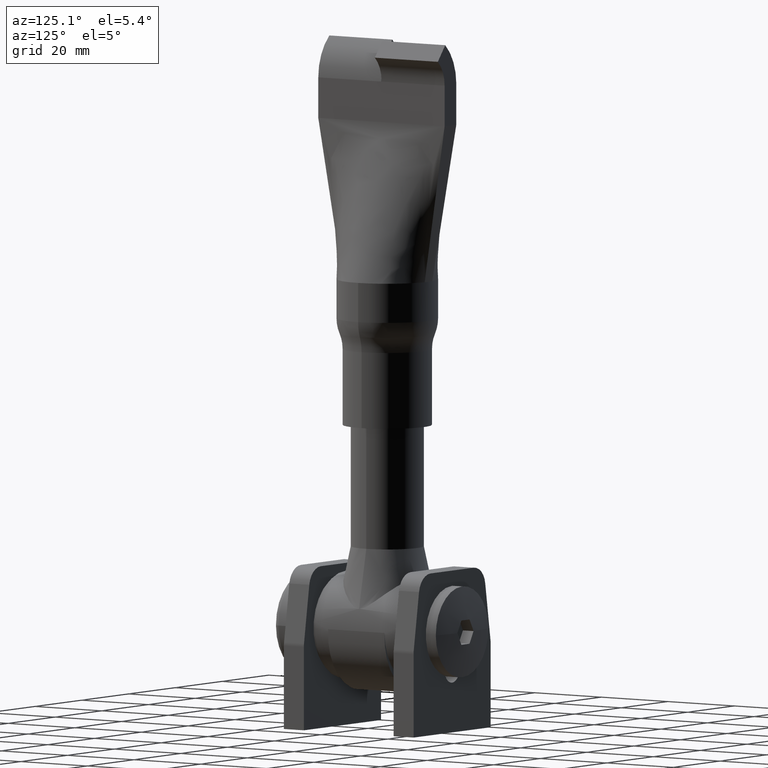
[diagram: clean part render]
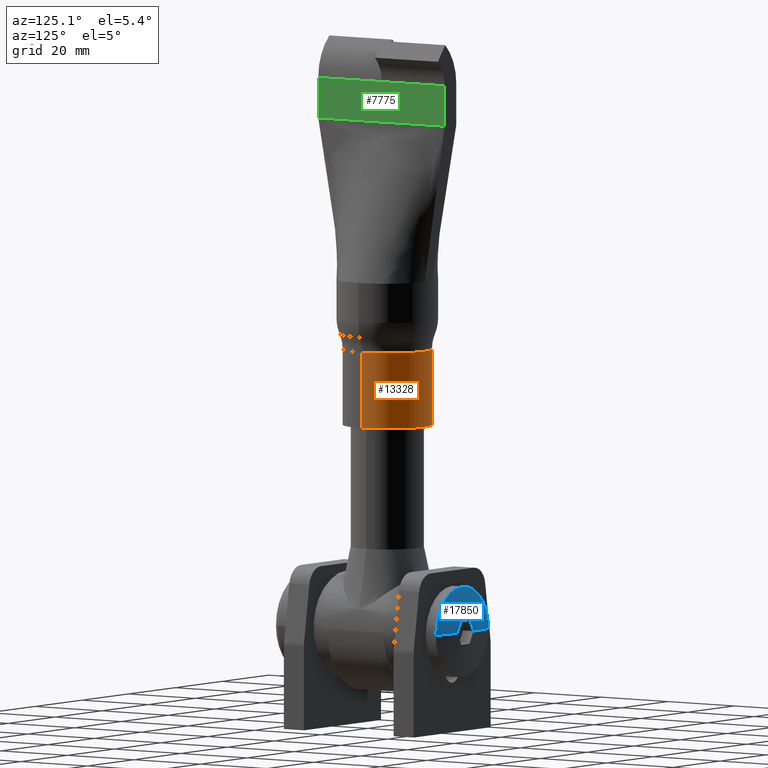
[diagram: same view with three faces highlighted in distinct colors, each labeled with its STEP entity id]
A machine part, auxiliary view with three faces highlighted in distinct colors.
Their STEP definitions:

[orange] entity #13328 — the highlighted cylindrical surface (partial cylindrical patch) has radius 11 mm, axis along (-0, -0, -1).
#17 = ORIENTED_EDGE ( 'NONE', *, *, #2529, .T. ) ;
#200 = VERTEX_POINT ( 'NONE', #11730 ) ;
#351 = DIRECTION ( 'NONE',  ( -0.0000000000000000000, -0.0000000000000000000, -1.000000000000000000 ) ) ;
#1136 = VERTEX_POINT ( 'NONE', #13223 ) ;
#1314 = CARTESIAN_POINT ( 'NONE',  ( 11.00000000000000000, 1.347111479062088400E-015, 0.0000000000000000000 ) ) ;
#1703 = LINE ( 'NONE', #14458, #2957 ) ;
#2354 = CARTESIAN_POINT ( 'NONE',  ( 11.00000000000000000, 1.347111479062088400E-015, 24.00000000000000000 ) ) ;
#2522 = ORIENTED_EDGE ( 'NONE', *, *, #11246, .T. ) ;
#2529 = EDGE_CURVE ( 'NONE', #200, #10312, #12843, .T. ) ;
#2957 = VECTOR ( 'NONE', #351, 1000.000000000000000 ) ;
#3357 = VERTEX_POINT ( 'NONE', #1314 ) ;
#4540 = DIRECTION ( 'NONE',  ( -0.0000000000000000000, -0.0000000000000000000, -1.000000000000000000 ) ) ;
#5885 = EDGE_CURVE ( 'NONE', #200, #1136, #1703, .T. ) ;
#6458 = EDGE_CURVE ( 'NONE', #3357, #1136, #16204, .T. ) ;
#7871 = DIRECTION ( 'NONE',  ( 0.0000000000000000000, 0.0000000000000000000, 1.000000000000000000 ) ) ;
#8002 = DIRECTION ( 'NONE',  ( 1.000000000000000000, 0.0000000000000000000, 0.0000000000000000000 ) ) ;
#9112 = ORIENTED_EDGE ( 'NONE', *, *, #6458, .T. ) ;
#9172 = AXIS2_PLACEMENT_3D ( 'NONE', #18915, #7871, #8002 ) ;
#9742 = AXIS2_PLACEMENT_3D ( 'NONE', #20342, #4540, #13821 ) ;
#10096 = ORIENTED_EDGE ( 'NONE', *, *, #5885, .F. ) ;
#10309 = DIRECTION ( 'NONE',  ( 1.000000000000000000, 0.0000000000000000000, 0.0000000000000000000 ) ) ;
#10312 = VERTEX_POINT ( 'NONE', #16318 ) ;
#10488 = DIRECTION ( 'NONE',  ( -0.0000000000000000000, -0.0000000000000000000, -1.000000000000000000 ) ) ;
#11246 = EDGE_CURVE ( 'NONE', #10312, #3357, #16284, .T. ) ;
#11440 = EDGE_LOOP ( 'NONE', ( #17, #2522, #9112, #10096 ) ) ;
#11730 = CARTESIAN_POINT ( 'NONE',  ( -11.00000000000000000, 0.0000000000000000000, 18.73217312357363400 ) ) ;
#11978 = VECTOR ( 'NONE', #10488, 1000.000000000000000 ) ;
#12843 = CIRCLE ( 'NONE', #13687, 11.00000000000000000 ) ;
#13223 = CARTESIAN_POINT ( 'NONE',  ( -11.00000000000000000, 0.0000000000000000000, 0.0000000000000000000 ) ) ;
#13328 = ADVANCED_FACE ( 'NONE', ( #16421 ), #17666, .T. ) ;
#13687 = AXIS2_PLACEMENT_3D ( 'NONE', #19854, #16699, #10309 ) ;
#13821 = DIRECTION ( 'NONE',  ( -1.000000000000000000, 0.0000000000000000000, 0.0000000000000000000 ) ) ;
#14458 = CARTESIAN_POINT ( 'NONE',  ( -11.00000000000000000, 0.0000000000000000000, 24.00000000000000000 ) ) ;
#16204 = CIRCLE ( 'NONE', #9172, 11.00000000000000000 ) ;
#16284 = LINE ( 'NONE', #2354, #11978 ) ;
#16318 = CARTESIAN_POINT ( 'NONE',  ( 11.00000000000000000, 1.347111479062088400E-015, 18.73217312357363400 ) ) ;
#16421 = FACE_OUTER_BOUND ( 'NONE', #11440, .T. ) ;
#16699 = DIRECTION ( 'NONE',  ( -0.0000000000000000000, -0.0000000000000000000, -1.000000000000000000 ) ) ;
#17666 = CYLINDRICAL_SURFACE ( 'NONE', #9742, 11.00000000000000000 ) ;
#18915 = CARTESIAN_POINT ( 'NONE',  ( 0.0000000000000000000, 0.0000000000000000000, 0.0000000000000000000 ) ) ;
#19854 = CARTESIAN_POINT ( 'NONE',  ( 0.0000000000000000000, 0.0000000000000000000, 18.73217312357363400 ) ) ;
#20342 = CARTESIAN_POINT ( 'NONE',  ( 0.0000000000000000000, 0.0000000000000000000, 24.00000000000000000 ) ) ;

[blue] entity #17850 — the highlighted spherical surface has radius 58.0784 mm.
#243 = SPHERICAL_SURFACE ( 'NONE', #10569, 58.07840909090924700 ) ;
#307 = CARTESIAN_POINT ( 'NONE',  ( 11.24999999999997500, 17.90000000000000600, 0.0000000000000000000 ) ) ;
#1022 = CIRCLE ( 'NONE', #8369, 58.00087587727455900 ) ;
#1116 = AXIS2_PLACEMENT_3D ( 'NONE', #7378, #15938, #7953 ) ;
#1287 = CARTESIAN_POINT ( 'NONE',  ( 3.464101615137756200, 18.89659933971550000, 6.505213034913026600E-016 ) ) ;
#1417 = CIRCLE ( 'NONE', #1116, 58.07840909090924700 ) ;
#1428 = DIRECTION ( 'NONE',  ( 0.5000000000000003300, 3.469394559473421300E-014, 0.8660254037844386000 ) ) ;
#1533 = CIRCLE ( 'NONE', #12127, 58.00087587727456700 ) ;
#2262 = VERTEX_POINT ( 'NONE', #19464 ) ;
#2826 = VERTEX_POINT ( 'NONE', #1287 ) ;
#3139 = ORIENTED_EDGE ( 'NONE', *, *, #8683, .F. ) ;
#3556 = CARTESIAN_POINT ( 'NONE',  ( 0.0000000000000000000, 17.90000000000000600, 0.0000000000000000000 ) ) ;
#3591 = DIRECTION ( 'NONE',  ( -1.000000000000000000, 0.0000000000000000000, 0.0000000000000000000 ) ) ;
#3880 = EDGE_CURVE ( 'NONE', #20545, #16864, #16639, .T. ) ;
#5158 = DIRECTION ( 'NONE',  ( -0.0000000000000000000, -1.000000000000000000, -0.0000000000000000000 ) ) ;
#5233 = DIRECTION ( 'NONE',  ( 0.0000000000000000000, 0.0000000000000000000, -1.000000000000000000 ) ) ;
#5429 = VERTEX_POINT ( 'NONE', #307 ) ;
#5505 = VERTEX_POINT ( 'NONE', #9066 ) ;
#5703 = CIRCLE ( 'NONE', #13376, 58.07840909090924700 ) ;
#6177 = DIRECTION ( 'NONE',  ( 0.0000000000000000000, -0.0000000000000000000, -1.000000000000000000 ) ) ;
#6719 = CARTESIAN_POINT ( 'NONE',  ( 0.0000000000000000000, -39.07840909090925400, 0.0000000000000000000 ) ) ;
#6812 = DIRECTION ( 'NONE',  ( 0.0000000000000000000, 0.0000000000000000000, -1.000000000000000000 ) ) ;
#7062 = DIRECTION ( 'NONE',  ( -0.8660254037844387100, -0.0000000000000000000, -0.4999999999999998300 ) ) ;
#7378 = CARTESIAN_POINT ( 'NONE',  ( 0.0000000000000000000, -39.07840909090925400, 0.0000000000000000000 ) ) ;
#7430 = CIRCLE ( 'NONE', #11126, 11.24999999999999500 ) ;
#7906 = EDGE_CURVE ( 'NONE', #5505, #2826, #1022, .T. ) ;
#7953 = DIRECTION ( 'NONE',  ( 1.000000000000000000, 0.0000000000000000000, -1.224646799147353200E-016 ) ) ;
#8369 = AXIS2_PLACEMENT_3D ( 'NONE', #15065, #7062, #15340 ) ;
#8523 = DIRECTION ( 'NONE',  ( 0.0000000000000000000, 0.0000000000000000000, -1.000000000000000000 ) ) ;
#8641 = CARTESIAN_POINT ( 'NONE',  ( -11.24999999999997500, 17.90000000000000600, 1.377727649040769200E-015 ) ) ;
#8683 = EDGE_CURVE ( 'NONE', #2262, #19550, #16007, .T. ) ;
#8716 = FACE_OUTER_BOUND ( 'NONE', #20037, .T. ) ;
#8954 = EDGE_CURVE ( 'NONE', #16864, #5505, #1533, .T. ) ;
#9066 = CARTESIAN_POINT ( 'NONE',  ( 1.732050807568879200, 18.89659933971550000, 3.000000000000000400 ) ) ;
#9246 = DIRECTION ( 'NONE',  ( 1.000000000000000000, 3.469394559473421900E-014, 0.0000000000000000000 ) ) ;
#10169 = CARTESIAN_POINT ( 'NONE',  ( 0.0000000000000000000, 17.90000000000000600, 0.0000000000000000000 ) ) ;
#10569 = AXIS2_PLACEMENT_3D ( 'NONE', #16272, #14505, #16067 ) ;
#10758 = ORIENTED_EDGE ( 'NONE', *, *, #8954, .F. ) ;
#10981 = CARTESIAN_POINT ( 'NONE',  ( -2.598076211353314700, -39.07840909090925400, 1.500000000000000000 ) ) ;
#11126 = AXIS2_PLACEMENT_3D ( 'NONE', #10169, #11772, #5233 ) ;
#11772 = DIRECTION ( 'NONE',  ( -0.0000000000000000000, -1.000000000000000000, -0.0000000000000000000 ) ) ;
#12127 = AXIS2_PLACEMENT_3D ( 'NONE', #15921, #6177, #9246 ) ;
#13376 = AXIS2_PLACEMENT_3D ( 'NONE', #6719, #8523, #3591 ) ;
#14199 = ORIENTED_EDGE ( 'NONE', *, *, #7906, .F. ) ;
#14505 = DIRECTION ( 'NONE',  ( 0.0000000000000000000, 0.0000000000000000000, 1.000000000000000000 ) ) ;
#15065 = CARTESIAN_POINT ( 'NONE',  ( 2.598076211353317800, -39.07840909090925400, 1.500000000000000400 ) ) ;
#15340 = DIRECTION ( 'NONE',  ( 0.4999999999999998900, 3.469394559473422500E-014, -0.8660254037844388200 ) ) ;
#15921 = CARTESIAN_POINT ( 'NONE',  ( 0.0000000000000000000, -39.07840909090925400, 3.000000000000000400 ) ) ;
#15938 = DIRECTION ( 'NONE',  ( 1.224646799147353200E-016, -0.0000000000000000000, 1.000000000000000000 ) ) ;
#16007 = CIRCLE ( 'NONE', #16587, 11.24999999999999500 ) ;
#16067 = DIRECTION ( 'NONE',  ( 1.000000000000000000, 0.0000000000000000000, 0.0000000000000000000 ) ) ;
#16272 = CARTESIAN_POINT ( 'NONE',  ( 0.0000000000000000000, -39.07840909090925400, 0.0000000000000000000 ) ) ;
#16587 = AXIS2_PLACEMENT_3D ( 'NONE', #3556, #5158, #6812 ) ;
#16639 = CIRCLE ( 'NONE', #19474, 58.00087587727457400 ) ;
#16864 = VERTEX_POINT ( 'NONE', #19491 ) ;
#17040 = ORIENTED_EDGE ( 'NONE', *, *, #20600, .T. ) ;
#17850 = ADVANCED_FACE ( 'NONE', ( #8716 ), #243, .T. ) ;
#18002 = ORIENTED_EDGE ( 'NONE', *, *, #18876, .F. ) ;
#18234 = ORIENTED_EDGE ( 'NONE', *, *, #19479, .F. ) ;
#18876 = EDGE_CURVE ( 'NONE', #2826, #5429, #5703, .T. ) ;
#19045 = DIRECTION ( 'NONE',  ( 0.8660254037844387100, -0.0000000000000000000, -0.5000000000000003300 ) ) ;
#19464 = CARTESIAN_POINT ( 'NONE',  ( 1.377727649040771600E-015, 17.90000000000000600, 11.24999999999999500 ) ) ;
#19474 = AXIS2_PLACEMENT_3D ( 'NONE', #10981, #19045, #1428 ) ;
#19479 = EDGE_CURVE ( 'NONE', #5429, #2262, #7430, .T. ) ;
#19491 = CARTESIAN_POINT ( 'NONE',  ( -1.732050807568875200, 18.89659933971550000, 3.000000000000000000 ) ) ;
#19550 = VERTEX_POINT ( 'NONE', #8641 ) ;
#20037 = EDGE_LOOP ( 'NONE', ( #20317, #17040, #3139, #18234, #18002, #14199, #10758 ) ) ;
#20317 = ORIENTED_EDGE ( 'NONE', *, *, #3880, .F. ) ;
#20545 = VERTEX_POINT ( 'NONE', #20678 ) ;
#20600 = EDGE_CURVE ( 'NONE', #20545, #19550, #1417, .T. ) ;
#20678 = CARTESIAN_POINT ( 'NONE',  ( -3.464101615137754800, 18.89659933971550000, 0.0000000000000000000 ) ) ;

[green] entity #7775 — the highlighted planar face has unit normal (-1, 0, 0).
#55 = DIRECTION ( 'NONE',  ( -1.000000000000000000, 1.141265444721584000E-016, 0.0000000000000000000 ) ) ;
#814 = ORIENTED_EDGE ( 'NONE', *, *, #19420, .T. ) ;
#1028 = VERTEX_POINT ( 'NONE', #20286 ) ;
#1142 = DIRECTION ( 'NONE',  ( -1.141265444721583800E-016, -1.000000000000000000, 0.0000000000000000000 ) ) ;
#1207 = CARTESIAN_POINT ( 'NONE',  ( 2.500000000000000900, 19.00000000000000000, 84.99999999999998600 ) ) ;
#1402 = DIRECTION ( 'NONE',  ( 1.144276699193144600E-016, 1.000000000000000000, -0.0000000000000000000 ) ) ;
#1516 = VECTOR ( 'NONE', #1142, 1000.000000000000000 ) ;
#1781 = EDGE_CURVE ( 'NONE', #19858, #1028, #11676, .T. ) ;
#1968 = AXIS2_PLACEMENT_3D ( 'NONE', #15988, #55, #16261 ) ;
#3366 = VERTEX_POINT ( 'NONE', #15936 ) ;
#4238 = VECTOR ( 'NONE', #12636, 1000.000000000000000 ) ;
#4240 = EDGE_CURVE ( 'NONE', #1028, #6791, #8841, .T. ) ;
#5624 = DIRECTION ( 'NONE',  ( -0.0000000000000000000, -0.0000000000000000000, 1.000000000000000000 ) ) ;
#6750 = LINE ( 'NONE', #1207, #1516 ) ;
#6791 = VERTEX_POINT ( 'NONE', #18986 ) ;
#7095 = DIRECTION ( 'NONE',  ( -1.141265444721583800E-016, -1.000000000000000000, 0.0000000000000000000 ) ) ;
#7544 = ORIENTED_EDGE ( 'NONE', *, *, #15356, .T. ) ;
#7775 = ADVANCED_FACE ( 'NONE', ( #18524 ), #11391, .F. ) ;
#7889 = EDGE_LOOP ( 'NONE', ( #18343, #19116, #7544, #16072, #814, #11176 ) ) ;
#8225 = EDGE_CURVE ( 'NONE', #15546, #12915, #6750, .T. ) ;
#8525 = CARTESIAN_POINT ( 'NONE',  ( 2.500000000000000900, 19.00000000000000000, 84.99999999999998600 ) ) ;
#8841 = LINE ( 'NONE', #10463, #15368 ) ;
#9698 = LINE ( 'NONE', #18907, #4238 ) ;
#10463 = CARTESIAN_POINT ( 'NONE',  ( 2.499999999999998700, -0.04999999999999857300, 84.99999999999998600 ) ) ;
#11028 = CARTESIAN_POINT ( 'NONE',  ( 2.499999999999998700, 0.05000000000000000300, 84.99999999999998600 ) ) ;
#11176 = ORIENTED_EDGE ( 'NONE', *, *, #4240, .F. ) ;
#11391 = PLANE ( 'NONE',  #1968 ) ;
#11676 = LINE ( 'NONE', #13416, #19719 ) ;
#11770 = CARTESIAN_POINT ( 'NONE',  ( 2.500000000000000900, 19.00000000000000000, 75.00000000000001400 ) ) ;
#11926 = LINE ( 'NONE', #11770, #18732 ) ;
#12452 = CARTESIAN_POINT ( 'NONE',  ( 2.499999999999996400, -19.00000000000000000, 75.00000000000001400 ) ) ;
#12636 = DIRECTION ( 'NONE',  ( -0.0000000000000000000, -0.0000000000000000000, 1.000000000000000000 ) ) ;
#12915 = VERTEX_POINT ( 'NONE', #11028 ) ;
#13416 = CARTESIAN_POINT ( 'NONE',  ( 2.499999999999996400, -19.00000000000000000, 36.67246420652638500 ) ) ;
#15356 = EDGE_CURVE ( 'NONE', #3366, #15546, #9698, .T. ) ;
#15368 = VECTOR ( 'NONE', #1402, 1000.000000000000000 ) ;
#15546 = VERTEX_POINT ( 'NONE', #8525 ) ;
#15936 = CARTESIAN_POINT ( 'NONE',  ( 2.500000000000000900, 19.00000000000000000, 74.99999999999998600 ) ) ;
#15971 = LINE ( 'NONE', #18166, #17963 ) ;
#15988 = CARTESIAN_POINT ( 'NONE',  ( 2.500000000000000900, 19.00000000000000000, 36.67246420652638500 ) ) ;
#16072 = ORIENTED_EDGE ( 'NONE', *, *, #8225, .T. ) ;
#16261 = DIRECTION ( 'NONE',  ( -1.141265444721584000E-016, -1.000000000000000000, 0.0000000000000000000 ) ) ;
#17963 = VECTOR ( 'NONE', #18032, 1000.000000000000000 ) ;
#18032 = DIRECTION ( 'NONE',  ( -1.141265444721583800E-016, -1.000000000000000000, 0.0000000000000000000 ) ) ;
#18166 = CARTESIAN_POINT ( 'NONE',  ( 2.500000000000000900, 19.00000000000000000, 84.99999999999998600 ) ) ;
#18343 = ORIENTED_EDGE ( 'NONE', *, *, #1781, .F. ) ;
#18347 = EDGE_CURVE ( 'NONE', #3366, #19858, #11926, .T. ) ;
#18524 = FACE_OUTER_BOUND ( 'NONE', #7889, .T. ) ;
#18732 = VECTOR ( 'NONE', #7095, 1000.000000000000000 ) ;
#18907 = CARTESIAN_POINT ( 'NONE',  ( 2.500000000000000900, 19.00000000000000000, 36.67246420652638500 ) ) ;
#18986 = CARTESIAN_POINT ( 'NONE',  ( 2.499999999999998700, -0.04999999999999796300, 84.99999999999998600 ) ) ;
#19116 = ORIENTED_EDGE ( 'NONE', *, *, #18347, .F. ) ;
#19420 = EDGE_CURVE ( 'NONE', #12915, #6791, #15971, .T. ) ;
#19719 = VECTOR ( 'NONE', #5624, 1000.000000000000000 ) ;
#19858 = VERTEX_POINT ( 'NONE', #12452 ) ;
#20286 = CARTESIAN_POINT ( 'NONE',  ( 2.499999999999996400, -19.00000000000000000, 84.99999999999998600 ) ) ;